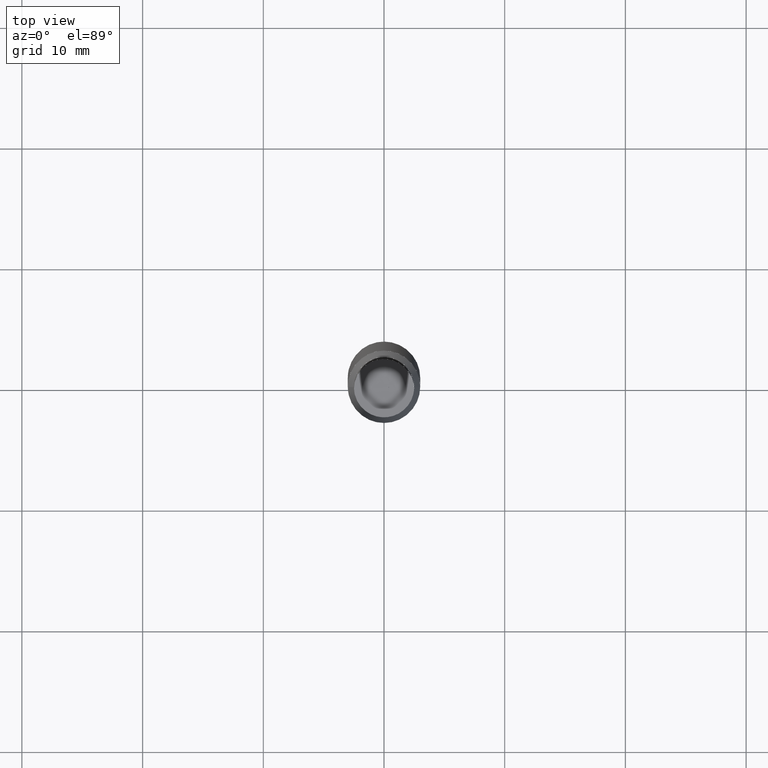
[diagram: clean part render]
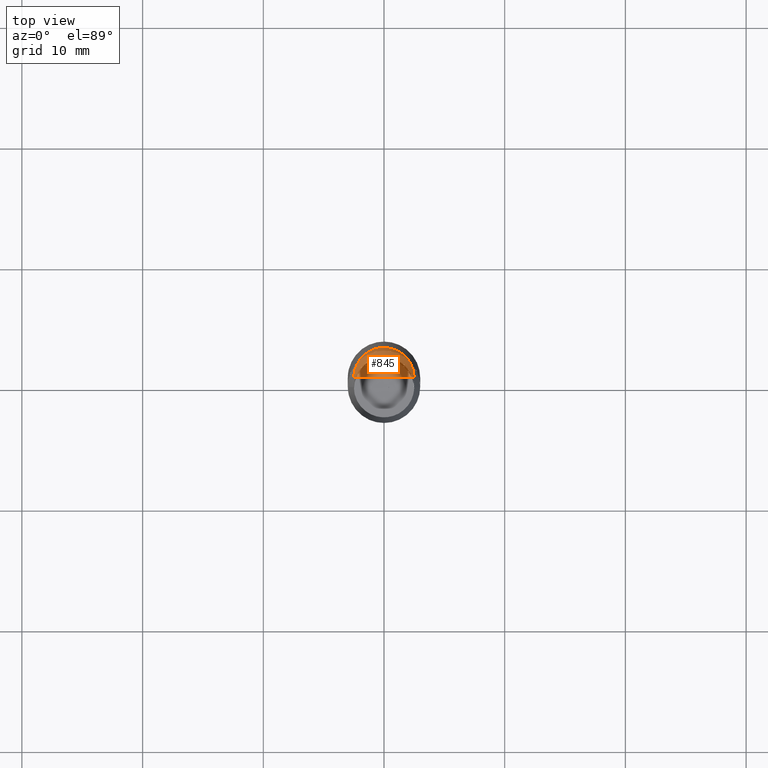
[diagram: same view with one face highlighted and labeled with its STEP entity id]
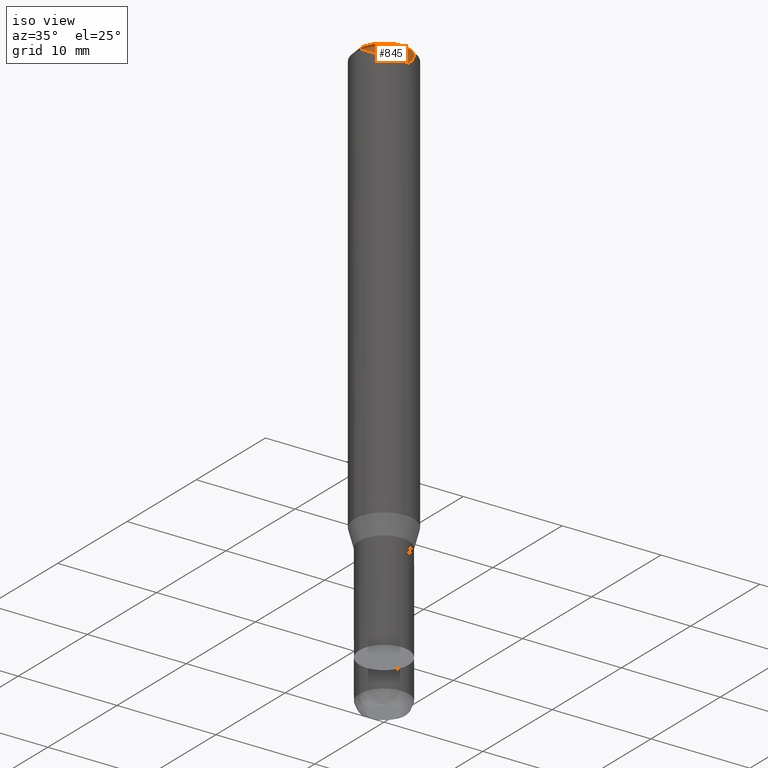
[diagram: same view with one face highlighted and labeled with its STEP entity id]
A machine part, top view. The second image highlights one B-rep face of the part: STEP entity #845.
A second angle (iso view) of the same face is appended — the face is thin or edge-on in the first view.
In plain terms, the highlighted face is a freeform B-spline surface patch.
Its self-contained STEP definition (entity closure, byte-faithful):
#561=CARTESIAN_POINT('',(2.5,0.0,43.133974596216));
#562=CARTESIAN_POINT('',(2.5,2.5,43.133974596216));
#563=CARTESIAN_POINT('',(0.0,2.5,43.133974596216));
#564=CARTESIAN_POINT('',(-2.5,2.5,43.133974596216));
#565=CARTESIAN_POINT('',(-2.5,0.0,43.133974596216));
#566=CARTESIAN_POINT('',(0.0,0.0,43.133974596216));
#830=(
BOUNDED_SURFACE()
B_SPLINE_SURFACE(1,2,(
(#561,#562,#563,#564,#565),
(#566,#566,#566,#566,#566)
), .UNSPECIFIED.,.F.,.F.,.F.)
B_SPLINE_SURFACE_WITH_KNOTS((2,2),(3,2,3),(
0.0,1.0),(
0.0,0.5,1.0), .UNSPECIFIED.)
GEOMETRIC_REPRESENTATION_ITEM()
RATIONAL_B_SPLINE_SURFACE(((1.0,0.707106781187,1.0,0.707106781187,1.0),
(1.0,0.707106781187,1.0,0.707106781187,1.0)
))
REPRESENTATION_ITEM('')
SURFACE()
);
#831=(
BOUNDED_CURVE()
B_SPLINE_CURVE(1,(#566,#561),.UNSPECIFIED.,.F.,.F.)
B_SPLINE_CURVE_WITH_KNOTS((2,2),
(0.0,1.0),.UNSPECIFIED.)
CURVE()
GEOMETRIC_REPRESENTATION_ITEM()
RATIONAL_B_SPLINE_CURVE((1.0,1.0))
REPRESENTATION_ITEM('')
);
#832=(
BOUNDED_CURVE()
B_SPLINE_CURVE(2,(#561,#562,#563,#564,#565),.UNSPECIFIED.,.F.,.F.)
B_SPLINE_CURVE_WITH_KNOTS((3,2,3),
(0.0,0.5,1.0),.UNSPECIFIED.)
CURVE()
GEOMETRIC_REPRESENTATION_ITEM()
RATIONAL_B_SPLINE_CURVE((1.0,0.707106781187,1.0,0.707106781187,1.0))
REPRESENTATION_ITEM('')
);
#833=(
BOUNDED_CURVE()
B_SPLINE_CURVE(1,(#565,#566),.UNSPECIFIED.,.F.,.F.)
B_SPLINE_CURVE_WITH_KNOTS((2,2),
(0.0,1.0),.UNSPECIFIED.)
CURVE()
GEOMETRIC_REPRESENTATION_ITEM()
RATIONAL_B_SPLINE_CURVE((1.0,1.0))
REPRESENTATION_ITEM('')
);
#834=VERTEX_POINT('',#561);
#835=VERTEX_POINT('',#565);
#836=VERTEX_POINT('',#566);
#837=EDGE_CURVE('',#836,#834,#831,.T.);
#838=EDGE_CURVE('',#834,#835,#832,.T.);
#839=EDGE_CURVE('',#835,#836,#833,.T.);
#840=ORIENTED_EDGE('',*,*,#837,.T.);
#841=ORIENTED_EDGE('',*,*,#838,.T.);
#842=ORIENTED_EDGE('',*,*,#839,.T.);
#843=EDGE_LOOP('',(#840,#841,#842));
#844=FACE_OUTER_BOUND('',#843,.T.);
#845=ADVANCED_FACE('',(#844),#830,.T.);